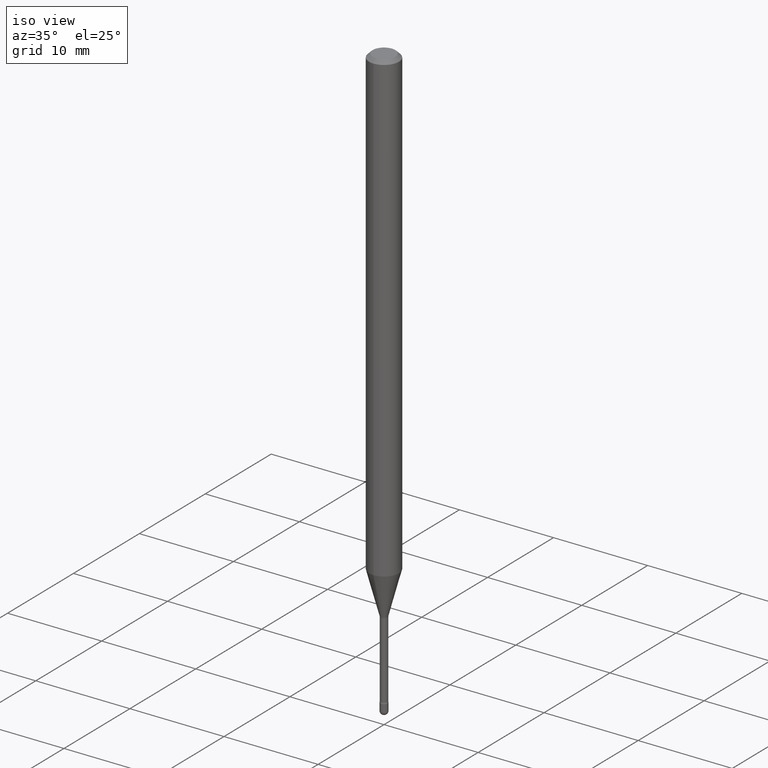
[diagram: clean part render]
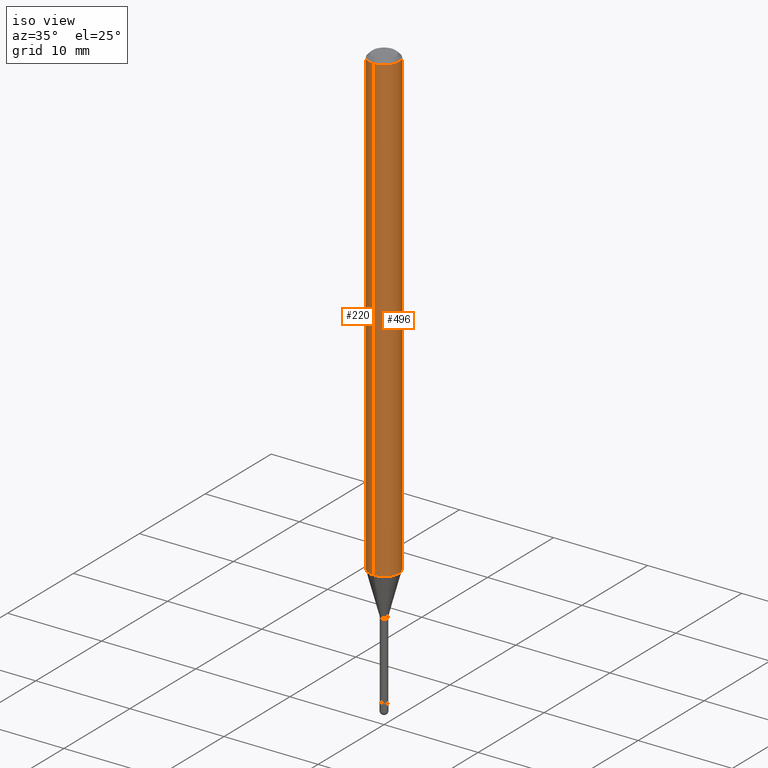
[diagram: same view with one multi-face feature highlighted, each face labeled with its STEP entity id]
A machine part, iso view. The highlighted faces form ONE feature: a constant-radius fillet chain: 2 tangent blend faces with common blend radius 1.5875 mm. The faces share edges in the B-rep.
Their STEP definitions:
[1] entity #496 (Cylinder):
#41 = DIRECTION ( 'NONE',  ( -6.982962677686265922E-15, -1.000000000000000000, 4.370956789862821150E-15 ) ) ;
#69 = AXIS2_PLACEMENT_3D ( 'NONE', #446, #409, #526 ) ;
#79 = EDGE_LOOP ( 'NONE', ( #370, #431, #81, #536 ) ) ;
#80 = CARTESIAN_POINT ( 'NONE',  ( -1.169113584055446105E-44, 1.669184350826100908E-30, 4.780733988912460139E-16 ) ) ;
#81 = ORIENTED_EDGE ( 'NONE', *, *, #329, .F. ) ;
#83 = LINE ( 'NONE', #563, #158 ) ;
#108 = VERTEX_POINT ( 'NONE', #157 ) ;
#111 = VERTEX_POINT ( 'NONE', #240 ) ;
#139 = DIRECTION ( 'NONE',  ( -2.445472010216045717E-29, 3.491476750488522114E-15, 1.000000000000000000 ) ) ;
#144 = DIRECTION ( 'NONE',  ( -2.445472010216045436E-29, 3.491476750488522114E-15, 1.000000000000000000 ) ) ;
#157 = CARTESIAN_POINT ( 'NONE',  ( -4.364351673553439926E-16, -0.06250000000000681399, -1.949048163777072240 ) ) ;
#158 = VECTOR ( 'NONE', #139, 39.37007874015748143 ) ;
#167 = VERTEX_POINT ( 'NONE', #300 ) ;
#177 = DIRECTION ( 'NONE',  ( -6.982962677686265922E-15, -1.000000000000000000, 3.491476750488521720E-15 ) ) ;
#184 = CARTESIAN_POINT ( 'NONE',  ( 4.440892098500625669E-16, 0.06250000000000000000, 2.598561019857134311E-16 ) ) ;
#193 = DIRECTION ( 'NONE',  ( -2.445472010216045436E-29, 3.491476750488522114E-15, 1.000000000000000000 ) ) ;
#225 = CIRCLE ( 'NONE', #69, 0.06250000000000000000 ) ;
#240 = CARTESIAN_POINT ( 'NONE',  ( 4.440892098501100464E-16, 0.06249999999999317907, -1.949048163777072684 ) ) ;
#287 = AXIS2_PLACEMENT_3D ( 'NONE', #525, #144, #41 ) ;
#300 = CARTESIAN_POINT ( 'NONE',  ( -4.364351673553912750E-16, -0.06250000000000005551, -0.01499999999999986587 ) ) ;
#329 = EDGE_CURVE ( 'NONE', #167, #421, #225, .T. ) ;
#333 = VECTOR ( 'NONE', #512, 39.37007874015748143 ) ;
#347 = LINE ( 'NONE', #184, #333 ) ;
#370 = ORIENTED_EDGE ( 'NONE', *, *, #481, .T. ) ;
#390 = FACE_OUTER_BOUND ( 'NONE', #79, .T. ) ;
#409 = DIRECTION ( 'NONE',  ( -2.445472010216045436E-29, 3.491476750488522114E-15, 1.000000000000000000 ) ) ;
#421 = VERTEX_POINT ( 'NONE', #454 ) ;
#431 = ORIENTED_EDGE ( 'NONE', *, *, #546, .T. ) ;
#446 = CARTESIAN_POINT ( 'NONE',  ( 3.668208015324088579E-31, -5.237215125732812531E-17, -0.01500000000000008271 ) ) ;
#454 = CARTESIAN_POINT ( 'NONE',  ( 4.440892098501106381E-16, 0.06249999999999995837, -0.01500000000000030129 ) ) ;
#469 = CYLINDRICAL_SURFACE ( 'NONE', #550, 0.06250000000000000000 ) ;
#478 = CIRCLE ( 'NONE', #287, 0.06250000000000000000 ) ;
#481 = EDGE_CURVE ( 'NONE', #108, #111, #478, .T. ) ;
#496 = ADVANCED_FACE ( 'NONE', ( #390 ), #469, .T. ) ;
#512 = DIRECTION ( 'NONE',  ( -2.445472010216045717E-29, 3.491476750488522114E-15, 1.000000000000000000 ) ) ;
#520 = EDGE_CURVE ( 'NONE', #108, #167, #83, .T. ) ;
#525 = CARTESIAN_POINT ( 'NONE',  ( 4.766342731079809553E-29, -6.805056349409992834E-15, -1.949048163777072462 ) ) ;
#526 = DIRECTION ( 'NONE',  ( -6.982962677686265922E-15, -1.000000000000000000, 3.483106191921935554E-15 ) ) ;
#536 = ORIENTED_EDGE ( 'NONE', *, *, #520, .F. ) ;
#546 = EDGE_CURVE ( 'NONE', #111, #421, #347, .T. ) ;
#550 = AXIS2_PLACEMENT_3D ( 'NONE', #80, #193, #177 ) ;
#563 = CARTESIAN_POINT ( 'NONE',  ( -4.364351673553916201E-16, -0.06250000000000000000, 6.962906957967786954E-16 ) ) ;
[2] entity #220 (Cylinder):
#3 = CYLINDRICAL_SURFACE ( 'NONE', #440, 0.06250000000000000000 ) ;
#23 = EDGE_LOOP ( 'NONE', ( #427, #117, #29, #294 ) ) ;
#29 = ORIENTED_EDGE ( 'NONE', *, *, #520, .T. ) ;
#54 = CARTESIAN_POINT ( 'NONE',  ( 4.766342731079809553E-29, -6.805056349409992834E-15, -1.949048163777072462 ) ) ;
#61 = DIRECTION ( 'NONE',  ( -2.445472010216045436E-29, 3.491476750488522114E-15, 1.000000000000000000 ) ) ;
#83 = LINE ( 'NONE', #563, #158 ) ;
#88 = DIRECTION ( 'NONE',  ( -6.982962677686265922E-15, -1.000000000000000000, 3.491476750488521720E-15 ) ) ;
#101 = CARTESIAN_POINT ( 'NONE',  ( 3.668208015324088579E-31, -5.237215125732812531E-17, -0.01500000000000008271 ) ) ;
#108 = VERTEX_POINT ( 'NONE', #157 ) ;
#111 = VERTEX_POINT ( 'NONE', #240 ) ;
#117 = ORIENTED_EDGE ( 'NONE', *, *, #394, .T. ) ;
#132 = AXIS2_PLACEMENT_3D ( 'NONE', #101, #365, #273 ) ;
#139 = DIRECTION ( 'NONE',  ( -2.445472010216045717E-29, 3.491476750488522114E-15, 1.000000000000000000 ) ) ;
#157 = CARTESIAN_POINT ( 'NONE',  ( -4.364351673553439926E-16, -0.06250000000000681399, -1.949048163777072240 ) ) ;
#158 = VECTOR ( 'NONE', #139, 39.37007874015748143 ) ;
#166 = DIRECTION ( 'NONE',  ( -2.445472010216045436E-29, 3.491476750488522114E-15, 1.000000000000000000 ) ) ;
#167 = VERTEX_POINT ( 'NONE', #300 ) ;
#184 = CARTESIAN_POINT ( 'NONE',  ( 4.440892098500625669E-16, 0.06250000000000000000, 2.598561019857134311E-16 ) ) ;
#206 = CIRCLE ( 'NONE', #132, 0.06250000000000000000 ) ;
#220 = ADVANCED_FACE ( 'NONE', ( #515 ), #3, .T. ) ;
#223 = CARTESIAN_POINT ( 'NONE',  ( -1.169113584055446105E-44, 1.669184350826100908E-30, 4.780733988912460139E-16 ) ) ;
#240 = CARTESIAN_POINT ( 'NONE',  ( 4.440892098501100464E-16, 0.06249999999999317907, -1.949048163777072684 ) ) ;
#248 = CIRCLE ( 'NONE', #417, 0.06250000000000000000 ) ;
#273 = DIRECTION ( 'NONE',  ( -6.982962677686265922E-15, -1.000000000000000000, 3.483106191921935554E-15 ) ) ;
#294 = ORIENTED_EDGE ( 'NONE', *, *, #324, .F. ) ;
#300 = CARTESIAN_POINT ( 'NONE',  ( -4.364351673553912750E-16, -0.06250000000000005551, -0.01499999999999986587 ) ) ;
#324 = EDGE_CURVE ( 'NONE', #421, #167, #206, .T. ) ;
#333 = VECTOR ( 'NONE', #512, 39.37007874015748143 ) ;
#347 = LINE ( 'NONE', #184, #333 ) ;
#365 = DIRECTION ( 'NONE',  ( -2.445472010216045436E-29, 3.491476750488522114E-15, 1.000000000000000000 ) ) ;
#394 = EDGE_CURVE ( 'NONE', #111, #108, #248, .T. ) ;
#417 = AXIS2_PLACEMENT_3D ( 'NONE', #54, #61, #441 ) ;
#421 = VERTEX_POINT ( 'NONE', #454 ) ;
#427 = ORIENTED_EDGE ( 'NONE', *, *, #546, .F. ) ;
#440 = AXIS2_PLACEMENT_3D ( 'NONE', #223, #166, #88 ) ;
#441 = DIRECTION ( 'NONE',  ( -6.982962677686265922E-15, -1.000000000000000000, 4.370956789862821150E-15 ) ) ;
#454 = CARTESIAN_POINT ( 'NONE',  ( 4.440892098501106381E-16, 0.06249999999999995837, -0.01500000000000030129 ) ) ;
#512 = DIRECTION ( 'NONE',  ( -2.445472010216045717E-29, 3.491476750488522114E-15, 1.000000000000000000 ) ) ;
#515 = FACE_OUTER_BOUND ( 'NONE', #23, .T. ) ;
#520 = EDGE_CURVE ( 'NONE', #108, #167, #83, .T. ) ;
#546 = EDGE_CURVE ( 'NONE', #111, #421, #347, .T. ) ;
#563 = CARTESIAN_POINT ( 'NONE',  ( -4.364351673553916201E-16, -0.06250000000000000000, 6.962906957967786954E-16 ) ) ;